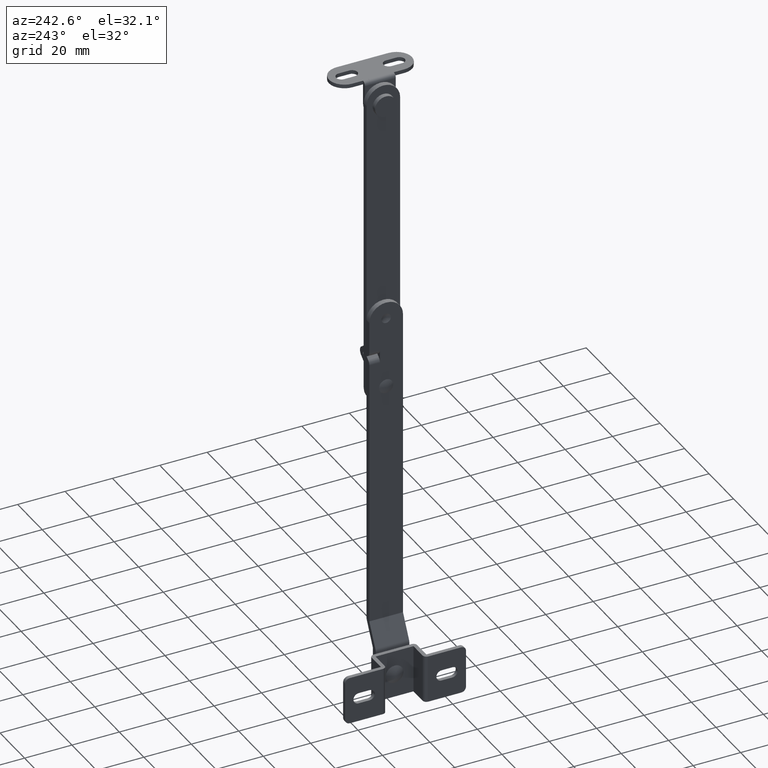
[diagram: clean part render]
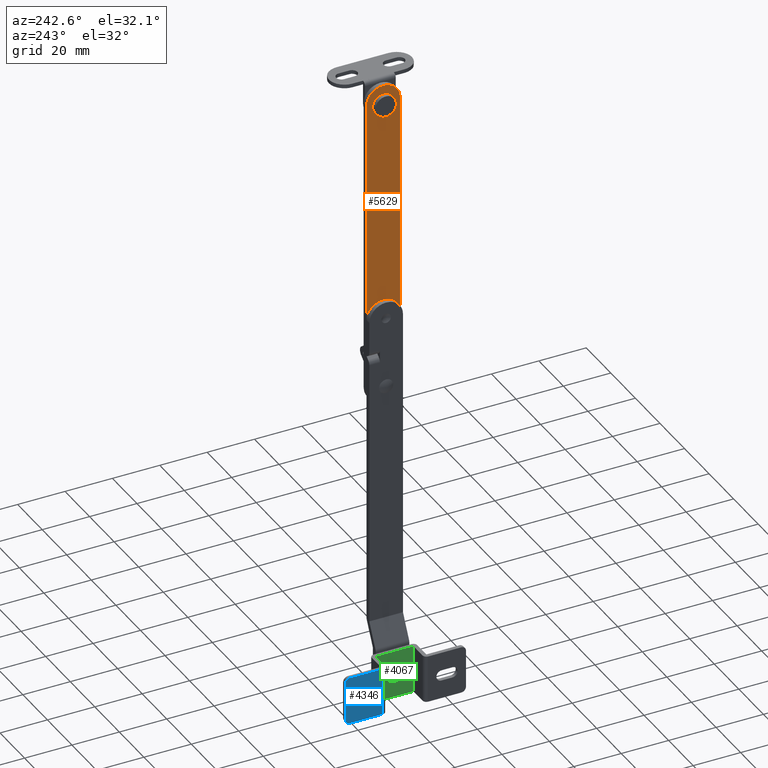
[diagram: same view with three faces highlighted in distinct colors, each labeled with its STEP entity id]
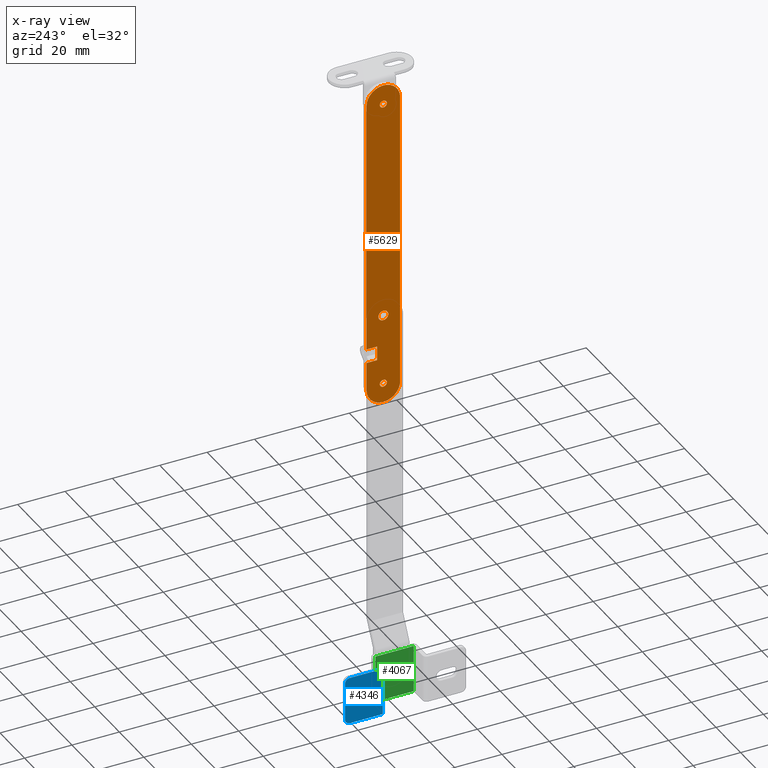
[diagram: x-ray of the same camera — body ghosted, the three highlighted faces saturated]
A machine part, auxiliary view with three faces highlighted in distinct colors.
The next image is the same camera in x-ray (body ghosted, the three faces saturated) — at least one of them is partly hidden behind the body in this view.
Their STEP definitions:

[orange] entity #5629 — the highlighted face is a freeform B-spline surface patch.
#4426=CARTESIAN_POINT('',(18.000005999999850,-1.603468129099456,31.356059513402570));
#4427=VERTEX_POINT('',#4426);
#4433=CARTESIAN_POINT('',(18.000005999999850,-2.352999E-011,32.099999999999987));
#4434=VERTEX_POINT('',#4433);
#4435=CARTESIAN_POINT('',(18.000005999999850,-1.603468129099456,31.356059513402570));
#4436=CARTESIAN_POINT('',(18.000005999999861,-1.431787277788725,31.559356315284770));
#4437=CARTESIAN_POINT('',(18.000005999999829,-0.949610983190649,31.947908262836329));
#4438=CARTESIAN_POINT('',(18.000005999999878,-0.342218562322408,32.100681878595367));
#4439=CARTESIAN_POINT('',(18.000005999999850,-2.352999E-011,32.099999999999987));
#4440=B_SPLINE_CURVE_WITH_KNOTS('',3,(#4435,#4436,#4437,#4438,#4439),.UNSPECIFIED.,.F.,.U.,(4,1,4),(0.000000194144374,0.798265835346080,1.824540082533289),.UNSPECIFIED.);
#4441=EDGE_CURVE('',#4427,#4434,#4440,.T.);
#4443=CARTESIAN_POINT('',(18.000005999999850,2.099999999964161,29.999992809857861));
#4444=VERTEX_POINT('',#4443);
#4445=CARTESIAN_POINT('',(18.000005999999850,-2.352999E-011,32.099999999999987));
#4446=CARTESIAN_POINT('',(18.000005999999861,0.292126342070977,32.100355978226403));
#4447=CARTESIAN_POINT('',(18.000005999999850,0.858775421879795,31.979832656606799));
#4448=CARTESIAN_POINT('',(18.000005999999871,1.531850435339592,31.505941719600241));
#4449=CARTESIAN_POINT('',(18.000005999999811,1.987048812344380,30.824471098689909));
#4450=CARTESIAN_POINT('',(18.000005999999829,2.100354998855099,30.292100760222539));
#4451=CARTESIAN_POINT('',(18.000005999999850,2.099999999964161,29.999992809857861));
#4452=B_SPLINE_CURVE_WITH_KNOTS('',3,(#4445,#4446,#4447,#4448,#4449,#4450,#4451),.UNSPECIFIED.,.F.,.U.,(4,1,1,1,4),(0.000000659755377,0.876234570972186,1.700823224128370,2.422525202656099,3.298759115814550),.UNSPECIFIED.);
#4453=EDGE_CURVE('',#4434,#4444,#4452,.T.);
#4455=CARTESIAN_POINT('',(18.000005999999850,-2.352999E-011,27.899999999999999));
#4456=VERTEX_POINT('',#4455);
#4457=CARTESIAN_POINT('',(18.000005999999850,2.099999999964161,29.999992809857861));
#4458=CARTESIAN_POINT('',(18.000005999999871,2.100238035541367,29.742241320457239));
#4459=CARTESIAN_POINT('',(18.000005999999850,2.023075239631802,29.330094341150691));
#4460=CARTESIAN_POINT('',(18.000005999999850,1.736477130254248,28.777734418621030));
#4461=CARTESIAN_POINT('',(18.000005999999889,1.316738621792202,28.314268439314429));
#4462=CARTESIAN_POINT('',(18.000005999999779,0.704398883076758,27.977370728485560));
#4463=CARTESIAN_POINT('',(18.000005999999939,0.223347635958732,27.899908092836100));
#4464=CARTESIAN_POINT('',(18.000005999999850,-2.352999E-011,27.899999999999999));
#4465=B_SPLINE_CURVE_WITH_KNOTS('',3,(#4457,#4458,#4459,#4460,#4461,#4462,#4463,#4464),.UNSPECIFIED.,.F.,.U.,(4,1,1,1,1,4),(0.000000669543942,0.773144084286569,1.237077105179785,1.855504484025609,2.628699516542083,3.298751010646301),.UNSPECIFIED.);
#4466=EDGE_CURVE('',#4444,#4456,#4465,.T.);
#4468=CARTESIAN_POINT('',(18.000005999999850,-1.445543778370220,28.476715507340209));
#4469=VERTEX_POINT('',#4468);
#4470=CARTESIAN_POINT('',(18.000005999999850,-2.352999E-011,27.899999999999999));
#4471=CARTESIAN_POINT('',(18.000005999999789,-0.299047053531074,27.899556558826720));
#4472=CARTESIAN_POINT('',(18.000005999999971,-0.830007286490355,28.015603014232319));
#4473=CARTESIAN_POINT('',(18.000005999999800,-1.276995469300518,28.316543197736639));
#4474=CARTESIAN_POINT('',(18.000005999999850,-1.445543778370220,28.476715507340209));
#4475=B_SPLINE_CURVE_WITH_KNOTS('',3,(#4470,#4471,#4472,#4473,#4474),.UNSPECIFIED.,.F.,.U.,(4,1,4),(0.000168353064012,0.896973022731005,1.594479592319328),.UNSPECIFIED.);
#4476=EDGE_CURVE('',#4456,#4469,#4475,.T.);
#4555=CARTESIAN_POINT('',(18.000005999999850,-2.100000000011220,30.000007190142139));
#4556=VERTEX_POINT('',#4555);
#4557=CARTESIAN_POINT('',(18.000005999999850,-1.445543778370220,28.476715507340209));
#4558=CARTESIAN_POINT('',(18.000005999999878,-1.625955366378637,28.647702426100121));
#4559=CARTESIAN_POINT('',(18.000005999999729,-1.967620005637131,29.112812806298159));
#4560=CARTESIAN_POINT('',(18.000005999999949,-2.100562185364313,29.680343794702839));
#4561=CARTESIAN_POINT('',(18.000005999999850,-2.100000000011220,30.000007190142139));
#4562=B_SPLINE_CURVE_WITH_KNOTS('',3,(#4557,#4558,#4559,#4560,#4561),.UNSPECIFIED.,.F.,.U.,(4,1,4),(0.000000174354884,0.745677110058247,1.704365584033918),.UNSPECIFIED.);
#4563=EDGE_CURVE('',#4469,#4556,#4562,.T.);
#4565=CARTESIAN_POINT('',(18.000005999999850,-2.100000000011220,30.000007190142139));
#4566=CARTESIAN_POINT('',(18.000005999999861,-2.100115683864082,30.214996747990359));
#4567=CARTESIAN_POINT('',(18.000005999999850,-2.023841711022000,30.706341149909580));
#4568=CARTESIAN_POINT('',(18.000005999999850,-1.782245849895740,31.145165964261508));
#4569=CARTESIAN_POINT('',(18.000005999999850,-1.603468129099456,31.356059513402570));
#4570=B_SPLINE_CURVE_WITH_KNOTS('',3,(#4565,#4566,#4567,#4568,#4569),.UNSPECIFIED.,.F.,.U.,(4,1,4),(0.000000101963709,0.645007003185533,1.474300568967522),.UNSPECIFIED.);
#4571=EDGE_CURVE('',#4556,#4427,#4570,.T.);
#4645=CARTESIAN_POINT('',(18.000005999999850,1.123433099608030,122.506069421516900));
#4646=VERTEX_POINT('',#4645);
#4652=CARTESIAN_POINT('',(18.000005999999850,-1.858299E-013,122.0));
#4653=VERTEX_POINT('',#4652);
#4654=CARTESIAN_POINT('',(18.000005999999850,1.123433099608030,122.506069421516900));
#4655=CARTESIAN_POINT('',(18.000005999999871,1.000861429758136,122.367260338900390));
#4656=CARTESIAN_POINT('',(18.000005999999829,0.660854754447822,122.103093797306700));
#4657=CARTESIAN_POINT('',(18.000005999999850,0.238190186077856,121.999516041264400));
#4658=CARTESIAN_POINT('',(18.000005999999850,-1.858299E-013,122.0));
#4659=B_SPLINE_CURVE_WITH_KNOTS('',3,(#4654,#4655,#4656,#4657,#4658),.UNSPECIFIED.,.F.,.U.,(4,1,4),(0.000000187069328,0.555570892297762,1.269874225939575),.UNSPECIFIED.);
#4660=EDGE_CURVE('',#4646,#4653,#4659,.T.);
#4662=CARTESIAN_POINT('',(18.000005999999850,-1.500000000000183,123.499999898093290));
#4663=VERTEX_POINT('',#4662);
#4664=CARTESIAN_POINT('',(18.000005999999850,-1.858299E-013,122.0));
#4665=CARTESIAN_POINT('',(18.000005999999871,-0.196372768414404,121.999801190488100));
#4666=CARTESIAN_POINT('',(18.000005999999839,-0.588932717686156,122.078215306268900));
#4667=CARTESIAN_POINT('',(18.000005999999861,-1.088373114510708,122.411598147367500));
#4668=CARTESIAN_POINT('',(18.000005999999839,-1.421794249724092,122.911109232010300));
#4669=CARTESIAN_POINT('',(18.000005999999878,-1.500200246819131,123.303610862655400));
#4670=CARTESIAN_POINT('',(18.000005999999850,-1.500000000000183,123.499999898093290));
#4671=B_SPLINE_CURVE_WITH_KNOTS('',3,(#4664,#4665,#4666,#4667,#4668,#4669,#4670),.UNSPECIFIED.,.F.,.U.,(4,1,1,1,4),(0.000000459810171,0.589113369120402,1.178215900985404,1.767323334941975,2.356430767539216),.UNSPECIFIED.);
#4672=EDGE_CURVE('',#4653,#4663,#4671,.T.);
#4674=CARTESIAN_POINT('',(18.000005999999850,-1.858299E-013,125.0));
#4675=VERTEX_POINT('',#4674);
#4676=CARTESIAN_POINT('',(18.000005999999850,-1.500000000000183,123.499999898093290));
#4677=CARTESIAN_POINT('',(18.000005999999871,-1.500220001690563,123.696388157995500));
#4678=CARTESIAN_POINT('',(18.000005999999839,-1.441284626469429,123.990730988000290));
#4679=CARTESIAN_POINT('',(18.000005999999861,-1.208846329325897,124.425798509353100));
#4680=CARTESIAN_POINT('',(18.000005999999871,-0.784375401925025,124.850603324238900));
#4681=CARTESIAN_POINT('',(18.000005999999861,-0.294792637290701,125.001064521656600));
#4682=CARTESIAN_POINT('',(18.000005999999850,-1.858299E-013,125.0));
#4683=B_SPLINE_CURVE_WITH_KNOTS('',3,(#4676,#4677,#4678,#4679,#4680,#4681,#4682),.UNSPECIFIED.,.F.,.U.,(4,1,1,1,4),(0.000000459267545,0.589113397398040,0.883685197252487,1.472733067264570,2.356430882423105),.UNSPECIFIED.);
#4684=EDGE_CURVE('',#4663,#4675,#4683,.T.);
#4686=CARTESIAN_POINT('',(18.000005999999850,0.993930611521812,124.623433137903400));
#4687=VERTEX_POINT('',#4686);
#4688=CARTESIAN_POINT('',(18.000005999999850,-1.858299E-013,125.0));
#4689=CARTESIAN_POINT('',(18.000005999999850,0.203752625855064,125.000259270999390));
#4690=CARTESIAN_POINT('',(18.000005999999850,0.565669443780192,124.924984391154790));
#4691=CARTESIAN_POINT('',(18.000005999999861,0.875307719353472,124.728486740933500));
#4692=CARTESIAN_POINT('',(18.000005999999850,0.993930611521812,124.623433137903400));
#4693=B_SPLINE_CURVE_WITH_KNOTS('',3,(#4688,#4689,#4690,#4691,#4692),.UNSPECIFIED.,.F.,.U.,(4,1,4),(0.000000170370302,0.611174562547099,1.086560857407124),.UNSPECIFIED.);
#4694=EDGE_CURVE('',#4675,#4687,#4693,.T.);
#4729=CARTESIAN_POINT('',(18.000005999999850,1.499999999999811,123.500000101906710));
#4730=VERTEX_POINT('',#4729);
#4731=CARTESIAN_POINT('',(18.000005999999850,0.993930611521812,124.623433137903400));
#4732=CARTESIAN_POINT('',(18.000005999999861,1.132735154373484,124.500839108503800));
#4733=CARTESIAN_POINT('',(18.000005999999850,1.396918125383275,124.160885723152010));
#4734=CARTESIAN_POINT('',(18.000005999999861,1.500479277435720,123.738173903597700));
#4735=CARTESIAN_POINT('',(18.000005999999850,1.499999999999811,123.500000101906710));
#4736=B_SPLINE_CURVE_WITH_KNOTS('',3,(#4731,#4732,#4733,#4734,#4735),.UNSPECIFIED.,.F.,.U.,(4,1,4),(0.000000187058504,0.555570857340634,1.269874146035380),.UNSPECIFIED.);
#4737=EDGE_CURVE('',#4687,#4730,#4736,.T.);
#4739=CARTESIAN_POINT('',(18.000005999999850,1.499999999999811,123.500000101906710));
#4740=CARTESIAN_POINT('',(18.000005999999850,1.500570822878238,123.250873987628200));
#4741=CARTESIAN_POINT('',(18.000005999999850,1.407720171721887,122.889309426886400));
#4742=CARTESIAN_POINT('',(18.000005999999850,1.198413557516131,122.590831474433800));
#4743=CARTESIAN_POINT('',(18.000005999999850,1.123433099608030,122.506069421516900));
#4744=B_SPLINE_CURVE_WITH_KNOTS('',3,(#4739,#4740,#4741,#4742,#4743),.UNSPECIFIED.,.F.,.U.,(4,1,4),(0.000000170364071,0.746998956581800,1.086560941653473),.UNSPECIFIED.);
#4745=EDGE_CURVE('',#4730,#4646,#4744,.T.);
#4827=CARTESIAN_POINT('',(18.000005999999850,1.123433099608215,-0.993930578483145));
#4828=VERTEX_POINT('',#4827);
#4834=CARTESIAN_POINT('',(18.000005999999850,0.0,-1.500000000000000));
#4835=VERTEX_POINT('',#4834);
#4836=CARTESIAN_POINT('',(18.000005999999850,1.123433099608215,-0.993930578483145));
#4837=CARTESIAN_POINT('',(18.000005999999878,0.965982141034104,-1.172649276268074));
#4838=CARTESIAN_POINT('',(18.000005999999800,0.608321561213829,-1.420606800103987));
#4839=CARTESIAN_POINT('',(18.000005999999889,0.185186079652431,-1.500151396650556));
#4840=CARTESIAN_POINT('',(18.000005999999850,0.0,-1.500000000000000));
#4841=B_SPLINE_CURVE_WITH_KNOTS('',3,(#4836,#4837,#4838,#4839,#4840),.UNSPECIFIED.,.F.,.U.,(4,1,4),(0.000000187069410,0.714303520703768,1.269874225939574),.UNSPECIFIED.);
#4842=EDGE_CURVE('',#4828,#4835,#4841,.T.);
#4844=CARTESIAN_POINT('',(18.000005999999850,-1.499999999999997,-0.000000101906711));
#4845=VERTEX_POINT('',#4844);
#4846=CARTESIAN_POINT('',(18.000005999999850,0.0,-1.500000000000000));
#4847=CARTESIAN_POINT('',(18.000005999999861,-0.196376588844617,-1.500198869482367));
#4848=CARTESIAN_POINT('',(18.000005999999861,-0.588929825499899,-1.421784717390424));
#4849=CARTESIAN_POINT('',(18.000005999999850,-1.088374743961445,-1.088400118192788));
#4850=CARTESIAN_POINT('',(18.000005999999850,-1.421792717255046,-0.588895725307404));
#4851=CARTESIAN_POINT('',(18.000005999999861,-1.500198714386067,-0.196383197151813));
#4852=CARTESIAN_POINT('',(18.000005999999850,-1.499999999999997,-0.000000101906711));
#4853=B_SPLINE_CURVE_WITH_KNOTS('',3,(#4846,#4847,#4848,#4849,#4850,#4851,#4852),.UNSPECIFIED.,.F.,.U.,(4,1,1,1,4),(0.000000459807827,0.589113369118813,1.178215900984567,1.767323334941643,2.356430767539226),.UNSPECIFIED.);
#4854=EDGE_CURVE('',#4835,#4845,#4853,.T.);
#4856=CARTESIAN_POINT('',(18.000005999999850,0.0,1.500000000000000));
#4857=VERTEX_POINT('',#4856);
#4858=CARTESIAN_POINT('',(18.000005999999850,-1.499999999999997,-0.000000101906711));
#4859=CARTESIAN_POINT('',(18.000005999999829,-1.500194560873185,0.196373369698294));
#4860=CARTESIAN_POINT('',(18.000005999999900,-1.421812132280615,0.588949903473241));
#4861=CARTESIAN_POINT('',(18.000005999999839,-1.116107563419387,1.046632364007461));
#4862=CARTESIAN_POINT('',(18.000005999999861,-0.637646495644659,1.401332669876977));
#4863=CARTESIAN_POINT('',(18.000005999999821,-0.245576123842860,1.500506627975043));
#4864=CARTESIAN_POINT('',(18.000005999999850,0.0,1.500000000000000));
#4865=B_SPLINE_CURVE_WITH_KNOTS('',3,(#4858,#4859,#4860,#4861,#4862,#4863,#4864),.UNSPECIFIED.,.F.,.U.,(4,1,1,1,4),(0.000000459268587,0.589113397398972,1.178215958646175,1.620021368977728,2.356430882423041),.UNSPECIFIED.);
#4866=EDGE_CURVE('',#4845,#4857,#4865,.T.);
#4868=CARTESIAN_POINT('',(18.000005999999850,0.993930611521998,1.123433137903350));
#4869=VERTEX_POINT('',#4868);
#4870=CARTESIAN_POINT('',(18.000005999999850,0.0,1.500000000000000));
#4871=CARTESIAN_POINT('',(18.000005999999889,0.203756457105891,1.500255610400235));
#4872=CARTESIAN_POINT('',(18.000005999999800,0.565668884667782,1.424986754394676));
#4873=CARTESIAN_POINT('',(18.000005999999889,0.875305887595269,1.228487564029506));
#4874=CARTESIAN_POINT('',(18.000005999999850,0.993930611521998,1.123433137903350));
#4875=B_SPLINE_CURVE_WITH_KNOTS('',3,(#4870,#4871,#4872,#4873,#4874),.UNSPECIFIED.,.F.,.U.,(4,1,4),(0.000000170370403,0.611174562547094,1.086560857407114),.UNSPECIFIED.);
#4876=EDGE_CURVE('',#4857,#4869,#4875,.T.);
#4911=CARTESIAN_POINT('',(18.000005999999850,1.499999999999996,0.000000101906706));
#4912=VERTEX_POINT('',#4911);
#4913=CARTESIAN_POINT('',(18.000005999999850,0.993930611521998,1.123433137903350));
#4914=CARTESIAN_POINT('',(18.000005999999839,1.132744931637755,1.000837880349250));
#4915=CARTESIAN_POINT('',(18.000005999999871,1.396901805776186,0.660892966114682));
#4916=CARTESIAN_POINT('',(18.000005999999850,1.500487907899777,0.238170312735903));
#4917=CARTESIAN_POINT('',(18.000005999999850,1.499999999999996,0.000000101906706));
#4918=B_SPLINE_CURVE_WITH_KNOTS('',3,(#4913,#4914,#4915,#4916,#4917),.UNSPECIFIED.,.F.,.U.,(4,1,4),(0.000000187058511,0.555570857340686,1.269874146035370),.UNSPECIFIED.);
#4919=EDGE_CURVE('',#4869,#4912,#4918,.T.);
#4921=CARTESIAN_POINT('',(18.000005999999850,1.499999999999996,0.000000101906706));
#4922=CARTESIAN_POINT('',(18.000005999999871,1.500254763284294,-0.203754236695717));
#4923=CARTESIAN_POINT('',(18.000005999999850,1.424989594754326,-0.565663677449044));
#4924=CARTESIAN_POINT('',(18.000005999999850,1.228485384947194,-0.875310080305481));
#4925=CARTESIAN_POINT('',(18.000005999999850,1.123433099608215,-0.993930578483145));
#4926=B_SPLINE_CURVE_WITH_KNOTS('',3,(#4921,#4922,#4923,#4924,#4925),.UNSPECIFIED.,.F.,.U.,(4,1,4),(0.000000170363715,0.611174609931099,1.086560941653472),.UNSPECIFIED.);
#4927=EDGE_CURVE('',#4912,#4828,#4926,.T.);
#5033=CARTESIAN_POINT('',(18.000005999999900,7.099999999999770,11.000013213438301));
#5034=VERTEX_POINT('',#5033);
#5040=CARTESIAN_POINT('',(18.000005999999900,2.599999999999910,11.000013213438301));
#5041=VERTEX_POINT('',#5040);
#5042=CARTESIAN_POINT('',(18.000005999999900,2.599999999999910,11.000013213438301));
#5043=CARTESIAN_POINT('',(18.000005999999900,7.099999999999770,11.000013213438301));
#5044=QUASI_UNIFORM_CURVE('',1,(#5042,#5043),.UNSPECIFIED.,.F.,.U.);
#5045=EDGE_CURVE('',#5041,#5034,#5044,.T.);
#5219=CARTESIAN_POINT('',(18.000005999999900,7.099999999999779,16.999986786501800));
#5220=VERTEX_POINT('',#5219);
#5227=CARTESIAN_POINT('',(18.000006000000049,2.599999999999910,16.999986786501651));
#5228=VERTEX_POINT('',#5227);
#5234=CARTESIAN_POINT('',(18.000006000000049,2.599999999999910,16.999986786501651));
#5235=CARTESIAN_POINT('',(18.000005999999900,7.099999999999779,16.999986786501800));
#5236=QUASI_UNIFORM_CURVE('',1,(#5234,#5235),.UNSPECIFIED.,.F.,.U.);
#5237=EDGE_CURVE('',#5228,#5220,#5236,.T.);
#5342=CARTESIAN_POINT('',(18.000005999999850,-7.100000000000140,-1.149999999999852));
#5343=VERTEX_POINT('',#5342);
#5349=CARTESIAN_POINT('',(18.000005999999850,0.000000035110811,-8.250000000000036));
#5350=VERTEX_POINT('',#5349);
#5351=CARTESIAN_POINT('',(18.000005999999850,0.000000035110811,-8.250000000000036));
#5352=CARTESIAN_POINT('',(18.000005999999861,-0.871438991060713,-8.250755418874434));
#5353=CARTESIAN_POINT('',(18.000005999999861,-2.206789493795415,-8.000822782619848));
#5354=CARTESIAN_POINT('',(18.000005999999829,-3.979466457134550,-7.108471006097473));
#5355=CARTESIAN_POINT('',(18.000005999999932,-5.190453835093848,-6.089573027629918));
#5356=CARTESIAN_POINT('',(18.000005999999789,-6.129073843397251,-4.823645805110334));
#5357=CARTESIAN_POINT('',(18.000005999999999,-6.878042406229396,-3.240814922523161));
#5358=CARTESIAN_POINT('',(18.000005999999750,-7.100476931658760,-1.963279520971338));
#5359=CARTESIAN_POINT('',(18.000005999999850,-7.100000000000140,-1.149999999999852));
#5360=B_SPLINE_CURVE_WITH_KNOTS('',3,(#5351,#5352,#5353,#5354,#5355,#5356,#5357,#5358,#5359),.UNSPECIFIED.,.F.,.U.,(4,1,1,1,1,1,4),(0.000000104890937,2.613962011138447,4.008117856519817,5.924987675795583,7.319079476249270,8.713244113137289,11.152933804565841),.UNSPECIFIED.);
#5361=EDGE_CURVE('',#5350,#5343,#5360,.T.);
#5363=CARTESIAN_POINT('',(18.000005999999850,7.100000000000111,-1.150000000000020));
#5364=VERTEX_POINT('',#5363);
#5365=CARTESIAN_POINT('',(18.000005999999850,7.100000000000111,-1.150000000000020));
#5366=CARTESIAN_POINT('',(18.000005999999850,7.100185234584663,-1.788963606506736));
#5367=CARTESIAN_POINT('',(18.000005999999861,6.934242939591665,-3.008688810967088));
#5368=CARTESIAN_POINT('',(18.000005999999878,6.284737937306348,-4.576737575272019));
#5369=CARTESIAN_POINT('',(18.000005999999861,5.377248853894643,-5.865172946851040));
#5370=CARTESIAN_POINT('',(18.000005999999850,4.392454001542413,-6.779972756972793));
#5371=CARTESIAN_POINT('',(18.000005999999878,3.260636742545820,-7.496642596951699));
#5372=CARTESIAN_POINT('',(18.000005999999750,1.858633970609884,-8.077525429268833));
#5373=CARTESIAN_POINT('',(18.000005999999921,0.697062094527319,-8.250274000882454));
#5374=CARTESIAN_POINT('',(18.000005999999850,0.000000035110811,-8.250000000000036));
#5375=B_SPLINE_CURVE_WITH_KNOTS('',3,(#5365,#5366,#5367,#5368,#5369,#5370,#5371,#5372,#5373,#5374),.UNSPECIFIED.,.F.,.U.,(4,1,1,1,1,1,1,4),(0.000000104937181,1.916878179225030,3.659585621935372,5.053684775021097,6.622025389704349,7.667615584938650,9.061785110250407,11.152933764986710),.UNSPECIFIED.);
#5376=EDGE_CURVE('',#5364,#5350,#5375,.T.);
#5404=CARTESIAN_POINT('',(18.000005999999850,0.000004087301126,131.749999999998810));
#5405=VERTEX_POINT('',#5404);
#5406=CARTESIAN_POINT('',(18.000005999999850,7.099999999999790,124.650000000000010));
#5407=VERTEX_POINT('',#5406);
#5408=CARTESIAN_POINT('',(18.000005999999850,0.000004087301126,131.749999999998810));
#5409=CARTESIAN_POINT('',(18.000005999999871,0.755172952054853,131.750434621472210));
#5410=CARTESIAN_POINT('',(18.000005999999850,2.090914049805619,131.534777452627310));
#5411=CARTESIAN_POINT('',(18.000005999999789,3.889772932368003,130.684025198897390));
#5412=CARTESIAN_POINT('',(18.000006000000031,5.190459940499425,129.589564553810700));
#5413=CARTESIAN_POINT('',(18.000005999999608,6.129117254720879,128.323653028602710));
#5414=CARTESIAN_POINT('',(18.000006000000191,6.877880405163165,126.740786008684790));
#5415=CARTESIAN_POINT('',(18.000005999999718,7.100638908424767,125.463306554989900));
#5416=CARTESIAN_POINT('',(18.000005999999850,7.099999999999790,124.650000000000010));
#5417=B_SPLINE_CURVE_WITH_KNOTS('',3,(#5408,#5409,#5410,#5411,#5412,#5413,#5414,#5415,#5416),.UNSPECIFIED.,.F.,.U.,(4,1,1,1,1,1,4),(0.000000107717348,2.265418206502124,4.008117024372958,5.924986447082603,7.319077952356786,8.713242297294610,11.152931481047521),.UNSPECIFIED.);
#5418=EDGE_CURVE('',#5405,#5407,#5417,.T.);
#5420=CARTESIAN_POINT('',(18.000005999999850,-7.100000000000200,124.650000000000010));
#5421=VERTEX_POINT('',#5420);
#5422=CARTESIAN_POINT('',(18.000005999999850,-7.100000000000200,124.650000000000010));
#5423=CARTESIAN_POINT('',(18.000005999999839,-7.100819009309263,125.521452690954600));
#5424=CARTESIAN_POINT('',(18.000005999999861,-6.872548795145068,126.740679283329000));
#5425=CARTESIAN_POINT('',(18.000005999999850,-6.150116357886708,128.267507230538000));
#5426=CARTESIAN_POINT('',(18.000005999999861,-5.243099221898513,129.556376611255100));
#5427=CARTESIAN_POINT('',(18.000005999999861,-3.937633479038519,130.654529731972900));
#5428=CARTESIAN_POINT('',(18.000005999999861,-2.090763633302728,131.527861044188710));
#5429=CARTESIAN_POINT('',(18.000005999999871,-0.813300562420432,131.750633794828790));
#5430=CARTESIAN_POINT('',(18.000005999999850,0.000004087301126,131.749999999998810));
#5431=B_SPLINE_CURVE_WITH_KNOTS('',3,(#5422,#5423,#5424,#5425,#5426,#5427,#5428,#5429,#5430),.UNSPECIFIED.,.F.,.U.,(4,1,1,1,1,1,4),(0.000000102104027,2.613962544132612,3.659586381759002,5.053685823154170,7.319080974182000,8.713245898047379,11.152936088503671),.UNSPECIFIED.);
#5432=EDGE_CURVE('',#5421,#5405,#5431,.T.);
#5489=CARTESIAN_POINT('',(18.000005999999850,-7.100000000000140,-1.149999999999852));
#5490=CARTESIAN_POINT('',(18.000005999999850,-7.100000000000200,124.650000000000010));
#5491=QUASI_UNIFORM_CURVE('',1,(#5489,#5490),.UNSPECIFIED.,.F.,.U.);
#5492=EDGE_CURVE('',#5343,#5421,#5491,.T.);
#5502=CARTESIAN_POINT('',(18.000005999999850,7.099999999999790,124.650000000000010));
#5503=CARTESIAN_POINT('',(18.000005999999900,7.099999999999779,16.999986786501800));
#5504=QUASI_UNIFORM_CURVE('',1,(#5502,#5503),.UNSPECIFIED.,.F.,.U.);
#5505=EDGE_CURVE('',#5407,#5220,#5504,.T.);
#5522=CARTESIAN_POINT('',(18.000005999999900,7.099999999999770,11.000013213438301));
#5523=CARTESIAN_POINT('',(18.000005999999850,7.100000000000111,-1.150000000000020));
#5524=QUASI_UNIFORM_CURVE('',1,(#5522,#5523),.UNSPECIFIED.,.F.,.U.);
#5525=EDGE_CURVE('',#5034,#5364,#5524,.T.);
#5584=CARTESIAN_POINT('',(18.000005999999900,7.809289972477773,-15.242999728652840));
#5585=CARTESIAN_POINT('',(18.000005999999910,-7.809290353351539,-15.242999728652840));
#5586=CARTESIAN_POINT('',(18.000005999999910,7.809289972477773,138.743003483744190));
#5587=CARTESIAN_POINT('',(18.000005999999910,-7.809290353351539,138.743003483744190));
#5588=B_SPLINE_SURFACE_WITH_KNOTS('',1,1,((#5584,#5586),(#5585,#5587)),.UNSPECIFIED.,.F.,.F.,.U.,(2,2),(2,2),(0.0,15.618580325829310),(0.0,153.986003212397010),.UNSPECIFIED.);
#5589=ORIENTED_EDGE('',*,*,#5525,.T.);
#5590=ORIENTED_EDGE('',*,*,#5376,.T.);
#5591=ORIENTED_EDGE('',*,*,#5361,.T.);
#5592=ORIENTED_EDGE('',*,*,#5492,.T.);
#5593=ORIENTED_EDGE('',*,*,#5432,.T.);
#5594=ORIENTED_EDGE('',*,*,#5418,.T.);
#5595=ORIENTED_EDGE('',*,*,#5505,.T.);
#5596=ORIENTED_EDGE('',*,*,#5237,.F.);
#5597=CARTESIAN_POINT('',(18.000006000000049,2.599999999999910,16.999986786501651));
#5598=CARTESIAN_POINT('',(18.000005999999900,2.599999999999910,11.000013213438301));
#5599=QUASI_UNIFORM_CURVE('',1,(#5597,#5598),.UNSPECIFIED.,.F.,.U.);
#5600=EDGE_CURVE('',#5228,#5041,#5599,.T.);
#5601=ORIENTED_EDGE('',*,*,#5600,.T.);
#5602=ORIENTED_EDGE('',*,*,#5045,.T.);
#5603=EDGE_LOOP('',(#5589,#5590,#5591,#5592,#5593,#5594,#5595,#5596,#5601,#5602));
#5604=FACE_OUTER_BOUND('',#5603,.T.);
#5605=ORIENTED_EDGE('',*,*,#4672,.F.);
#5606=ORIENTED_EDGE('',*,*,#4660,.F.);
#5607=ORIENTED_EDGE('',*,*,#4745,.F.);
#5608=ORIENTED_EDGE('',*,*,#4737,.F.);
#5609=ORIENTED_EDGE('',*,*,#4694,.F.);
#5610=ORIENTED_EDGE('',*,*,#4684,.F.);
#5611=EDGE_LOOP('',(#5605,#5606,#5607,#5608,#5609,#5610));
#5612=FACE_BOUND('',#5611,.T.);
#5613=ORIENTED_EDGE('',*,*,#4854,.F.);
#5614=ORIENTED_EDGE('',*,*,#4842,.F.);
#5615=ORIENTED_EDGE('',*,*,#4927,.F.);
#5616=ORIENTED_EDGE('',*,*,#4919,.F.);
#5617=ORIENTED_EDGE('',*,*,#4876,.F.);
#5618=ORIENTED_EDGE('',*,*,#4866,.F.);
#5619=EDGE_LOOP('',(#5613,#5614,#5615,#5616,#5617,#5618));
#5620=FACE_BOUND('',#5619,.T.);
#5621=ORIENTED_EDGE('',*,*,#4453,.F.);
#5622=ORIENTED_EDGE('',*,*,#4441,.F.);
#5623=ORIENTED_EDGE('',*,*,#4571,.F.);
#5624=ORIENTED_EDGE('',*,*,#4563,.F.);
#5625=ORIENTED_EDGE('',*,*,#4476,.F.);
#5626=ORIENTED_EDGE('',*,*,#4466,.F.);
#5627=EDGE_LOOP('',(#5621,#5622,#5623,#5624,#5625,#5626));
#5628=FACE_BOUND('',#5627,.T.);
#5629=ADVANCED_FACE('',(#5604,#5612,#5620,#5628),#5588,.T.);

[blue] entity #4346 — the highlighted face is a freeform B-spline surface patch.
#3150=CARTESIAN_POINT('',(-0.099999999999987,15.250000000000000,-125.750000000000000));
#3151=VERTEX_POINT('',#3150);
#3157=CARTESIAN_POINT('',(-0.099999999999987,13.000000000011591,-123.499992776606210));
#3158=VERTEX_POINT('',#3157);
#3159=CARTESIAN_POINT('',(-0.099999999999987,15.250000000000000,-125.750000000000000));
#3160=CARTESIAN_POINT('',(-0.099999999999987,14.973873164314970,-125.750197732628390));
#3161=CARTESIAN_POINT('',(-0.099999999999987,14.403308449734780,-125.643711834630000));
#3162=CARTESIAN_POINT('',(-0.099999999999987,13.642048357574801,-125.162129428512200));
#3163=CARTESIAN_POINT('',(-0.099999999999987,13.120926001774590,-124.401770143360810));
#3164=CARTESIAN_POINT('',(-0.099999999999987,12.999698638576970,-123.794558171933100));
#3165=CARTESIAN_POINT('',(-0.099999999999987,13.000000000011591,-123.499992776606210));
#3166=B_SPLINE_CURVE_WITH_KNOTS('',3,(#3159,#3160,#3161,#3162,#3163,#3164,#3165),.UNSPECIFIED.,.F.,.U.,(4,1,1,1,4),(0.000000625091867,0.828368929352532,1.712059513566611,2.650788564761916,3.534384496202183),.UNSPECIFIED.);
#3167=EDGE_CURVE('',#3151,#3158,#3166,.T.);
#3169=CARTESIAN_POINT('',(-0.099999999999987,15.250000000000000,-121.250000000000000));
#3170=VERTEX_POINT('',#3169);
#3171=CARTESIAN_POINT('',(-0.099999999999987,13.000000000011591,-123.499992776606210));
#3172=CARTESIAN_POINT('',(-0.099999999999987,12.999808003790619,-123.223870720372300));
#3173=CARTESIAN_POINT('',(-0.099999999999987,13.106231067822170,-122.653242507009490));
#3174=CARTESIAN_POINT('',(-0.099999999999987,13.517785203414860,-122.003305258728500));
#3175=CARTESIAN_POINT('',(-0.099999999999988,14.019825518257800,-121.591669352556810));
#3176=CARTESIAN_POINT('',(-0.099999999999987,14.569024022554220,-121.323590959811100));
#3177=CARTESIAN_POINT('',(-0.099999999999988,14.992263019484740,-121.249804480769000));
#3178=CARTESIAN_POINT('',(-0.099999999999987,15.250000000000000,-121.250000000000000));
#3179=B_SPLINE_CURVE_WITH_KNOTS('',3,(#3171,#3172,#3173,#3174,#3175,#3176,#3177,#3178),.UNSPECIFIED.,.F.,.U.,(4,1,1,1,1,4),(0.000000634944110,0.828367029953638,1.712055584754863,2.264193330058098,2.761238464684050,3.534376353550585),.UNSPECIFIED.);
#3180=EDGE_CURVE('',#3158,#3170,#3179,.T.);
#3202=CARTESIAN_POINT('',(-0.099999999999987,19.750000000000000,-125.750000000000000));
#3203=VERTEX_POINT('',#3202);
#3209=CARTESIAN_POINT('',(-0.099999999999987,19.750000000000000,-125.750000000000000));
#3210=CARTESIAN_POINT('',(-0.099999999999987,15.250000000000000,-125.750000000000000));
#3211=QUASI_UNIFORM_CURVE('',1,(#3209,#3210),.UNSPECIFIED.,.F.,.U.);
#3212=EDGE_CURVE('',#3203,#3151,#3211,.T.);
#3262=CARTESIAN_POINT('',(-0.099999999999987,19.750000000000000,-121.250000000000000));
#3263=VERTEX_POINT('',#3262);
#3269=CARTESIAN_POINT('',(-0.099999999999987,21.999999999988411,-123.500007223393790));
#3270=VERTEX_POINT('',#3269);
#3271=CARTESIAN_POINT('',(-0.099999999999987,19.750000000000000,-121.250000000000000));
#3272=CARTESIAN_POINT('',(-0.099999999999987,19.952464094582670,-121.249990308468400));
#3273=CARTESIAN_POINT('',(-0.099999999999987,20.468031887663869,-121.319766471148600));
#3274=CARTESIAN_POINT('',(-0.099999999999987,21.119169818129890,-121.657486987949400));
#3275=CARTESIAN_POINT('',(-0.099999999999987,21.586722833035061,-122.161466016395810));
#3276=CARTESIAN_POINT('',(-0.099999999999987,21.908277341766990,-122.745508996010100));
#3277=CARTESIAN_POINT('',(-0.099999999999987,22.000323625178691,-123.205420586526700));
#3278=CARTESIAN_POINT('',(-0.099999999999987,21.999999999988411,-123.500007223393790));
#3279=B_SPLINE_CURVE_WITH_KNOTS('',3,(#3271,#3272,#3273,#3274,#3275,#3276,#3277,#3278),.UNSPECIFIED.,.F.,.U.,(4,1,1,1,1,4),(0.000000625082672,0.607465952569943,1.546359307077527,2.153760755114476,2.650788564761460,3.534384496202183),.UNSPECIFIED.);
#3280=EDGE_CURVE('',#3263,#3270,#3279,.T.);
#3282=CARTESIAN_POINT('',(-0.099999999999987,21.999999999988411,-123.500007223393790));
#3283=CARTESIAN_POINT('',(-0.099999999999987,22.000135979274681,-123.739320026648200));
#3284=CARTESIAN_POINT('',(-0.099999999999987,21.925869499585328,-124.199422152660400));
#3285=CARTESIAN_POINT('',(-0.099999999999987,21.599726155481960,-124.847774647336810));
#3286=CARTESIAN_POINT('',(-0.099999999999987,21.137346260433770,-125.310013362642910));
#3287=CARTESIAN_POINT('',(-0.099999999999987,20.504493721058090,-125.658262339935500));
#3288=CARTESIAN_POINT('',(-0.099999999999987,20.044587790768212,-125.750342993831890));
#3289=CARTESIAN_POINT('',(-0.099999999999987,19.750000000000000,-125.750000000000000));
#3290=B_SPLINE_CURVE_WITH_KNOTS('',3,(#3282,#3283,#3284,#3285,#3286,#3287,#3288,#3289),.UNSPECIFIED.,.F.,.U.,(4,1,1,1,1,4),(0.000000634932922,0.717911027480872,1.380623915136183,2.153755817367038,2.650782462055805,3.534376353550593),.UNSPECIFIED.);
#3291=EDGE_CURVE('',#3270,#3203,#3290,.T.);
#3308=CARTESIAN_POINT('',(-0.099999999999987,15.250000000000000,-121.250000000000000));
#3309=CARTESIAN_POINT('',(-0.099999999999987,19.750000000000000,-121.250000000000000));
#3310=QUASI_UNIFORM_CURVE('',1,(#3308,#3309),.UNSPECIFIED.,.F.,.U.);
#3311=EDGE_CURVE('',#3170,#3263,#3310,.T.);
#3653=CARTESIAN_POINT('',(-0.099999999999987,23.500000000000000,-133.500000000004600));
#3654=VERTEX_POINT('',#3653);
#3655=CARTESIAN_POINT('',(-0.099999999999987,25.500000000000000,-131.500000000004600));
#3656=VERTEX_POINT('',#3655);
#3657=CARTESIAN_POINT('',(-0.099999999999987,23.500000000000000,-133.500000000004600));
#3658=CARTESIAN_POINT('',(-0.099999999999987,23.810982876346401,-133.500529524480210));
#3659=CARTESIAN_POINT('',(-0.099999999999987,24.399526146614232,-133.359850001569610));
#3660=CARTESIAN_POINT('',(-0.099999999999987,25.013132083844280,-132.868866236943890));
#3661=CARTESIAN_POINT('',(-0.099999999999987,25.402765906499258,-132.236041633149400));
#3662=CARTESIAN_POINT('',(-0.099999999999987,25.500367001860159,-131.778226101905800));
#3663=CARTESIAN_POINT('',(-0.099999999999987,25.500000000000000,-131.500000000004600));
#3664=B_SPLINE_CURVE_WITH_KNOTS('',3,(#3657,#3658,#3659,#3660,#3661,#3662,#3663),.UNSPECIFIED.,.F.,.U.,(4,1,1,1,4),(0.000000633079072,0.932686972906372,1.767149350963513,2.307164052972636,3.141671488830979),.UNSPECIFIED.);
#3665=EDGE_CURVE('',#3654,#3656,#3664,.T.);
#3709=CARTESIAN_POINT('',(-0.099999999999987,25.500000000000000,-115.500000000004410));
#3710=VERTEX_POINT('',#3709);
#3711=CARTESIAN_POINT('',(-0.099999999999987,23.500000000000000,-113.500000000004600));
#3712=VERTEX_POINT('',#3711);
#3713=CARTESIAN_POINT('',(-0.099999999999987,25.500000000000000,-115.500000000004410));
#3714=CARTESIAN_POINT('',(-0.099999999999987,25.500526782592068,-115.189032895574400));
#3715=CARTESIAN_POINT('',(-0.099999999999987,25.371515475448881,-114.649568383003800));
#3716=CARTESIAN_POINT('',(-0.099999999999987,24.926259555044290,-114.049472557139400));
#3717=CARTESIAN_POINT('',(-0.099999999999987,24.317706530657649,-113.620778065532800));
#3718=CARTESIAN_POINT('',(-0.099999999999987,23.811004080286139,-113.499438576370810));
#3719=CARTESIAN_POINT('',(-0.099999999999987,23.500000000000000,-113.500000000004600));
#3720=B_SPLINE_CURVE_WITH_KNOTS('',3,(#3713,#3714,#3715,#3716,#3717,#3718,#3719),.UNSPECIFIED.,.F.,.U.,(4,1,1,1,4),(0.000000633083133,0.932686972909415,1.619829693507054,2.208981155449895,3.141671488830734),.UNSPECIFIED.);
#3721=EDGE_CURVE('',#3710,#3712,#3720,.T.);
#3814=CARTESIAN_POINT('',(-0.099999999999986,9.599999000000000,-113.500000000004600));
#3815=VERTEX_POINT('',#3814);
#3816=CARTESIAN_POINT('',(-0.099999999999986,9.599999000000000,-113.500000000004600));
#3817=CARTESIAN_POINT('',(-0.099999999999987,23.500000000000000,-113.500000000004600));
#3818=QUASI_UNIFORM_CURVE('',1,(#3816,#3817),.UNSPECIFIED.,.F.,.U.);
#3819=EDGE_CURVE('',#3815,#3712,#3818,.T.);
#3920=CARTESIAN_POINT('',(-0.099999999999986,9.599999000000000,-133.500000000004600));
#3921=VERTEX_POINT('',#3920);
#3932=CARTESIAN_POINT('',(-0.099999999999986,9.599999000000000,-133.500000000004600));
#3933=CARTESIAN_POINT('',(-0.099999999999987,23.500000000000000,-133.500000000004600));
#3934=QUASI_UNIFORM_CURVE('',1,(#3932,#3933),.UNSPECIFIED.,.F.,.U.);
#3935=EDGE_CURVE('',#3921,#3654,#3934,.T.);
#4014=CARTESIAN_POINT('',(-0.099999999999986,9.599999000000000,-133.500000000004600));
#4015=CARTESIAN_POINT('',(-0.099999999999986,9.599999000000000,-113.500000000004600));
#4016=QUASI_UNIFORM_CURVE('',1,(#4014,#4015),.UNSPECIFIED.,.F.,.U.);
#4017=EDGE_CURVE('',#3921,#3815,#4016,.T.);
#4314=CARTESIAN_POINT('',(-0.099999999999987,25.500000000000000,-131.500000000004600));
#4315=CARTESIAN_POINT('',(-0.099999999999987,25.500000000000000,-115.500000000004410));
#4316=QUASI_UNIFORM_CURVE('',1,(#4314,#4315),.UNSPECIFIED.,.F.,.U.);
#4317=EDGE_CURVE('',#3656,#3710,#4316,.T.);
#4325=CARTESIAN_POINT('',(-0.099999999999987,8.805794428640786,-134.498999961240710));
#4326=CARTESIAN_POINT('',(-0.099999999999987,8.805794428640786,-112.500999502326710));
#4327=CARTESIAN_POINT('',(-0.099999999999987,26.294205424301740,-134.498999961240710));
#4328=CARTESIAN_POINT('',(-0.099999999999987,26.294205424301740,-112.500999502326710));
#4329=B_SPLINE_SURFACE_WITH_KNOTS('',1,1,((#4325,#4327),(#4326,#4328)),.UNSPECIFIED.,.F.,.F.,.U.,(2,2),(2,2),(0.0,21.998000458914049),(0.0,17.488410995660949),.UNSPECIFIED.);
#4330=ORIENTED_EDGE('',*,*,#3935,.F.);
#4331=ORIENTED_EDGE('',*,*,#4017,.T.);
#4332=ORIENTED_EDGE('',*,*,#3819,.T.);
#4333=ORIENTED_EDGE('',*,*,#3721,.F.);
#4334=ORIENTED_EDGE('',*,*,#4317,.F.);
#4335=ORIENTED_EDGE('',*,*,#3665,.F.);
#4336=EDGE_LOOP('',(#4330,#4331,#4332,#4333,#4334,#4335));
#4337=FACE_OUTER_BOUND('',#4336,.T.);
#4338=ORIENTED_EDGE('',*,*,#3311,.F.);
#4339=ORIENTED_EDGE('',*,*,#3180,.F.);
#4340=ORIENTED_EDGE('',*,*,#3167,.F.);
#4341=ORIENTED_EDGE('',*,*,#3212,.F.);
#4342=ORIENTED_EDGE('',*,*,#3291,.F.);
#4343=ORIENTED_EDGE('',*,*,#3280,.F.);
#4344=EDGE_LOOP('',(#4338,#4339,#4340,#4341,#4342,#4343));
#4345=FACE_BOUND('',#4344,.T.);
#4346=ADVANCED_FACE('',(#4337,#4345),#4329,.T.);

[green] entity #4067 — the highlighted face is a freeform B-spline surface patch.
#2945=CARTESIAN_POINT('',(8.900000000000000,1.858299E-013,-122.0));
#2946=VERTEX_POINT('',#2945);
#2947=CARTESIAN_POINT('',(8.899999999998318,0.993930617896467,-122.376566867736200));
#2948=VERTEX_POINT('',#2947);
#2949=CARTESIAN_POINT('',(8.900000000000000,1.858299E-013,-122.0));
#2950=CARTESIAN_POINT('',(8.899999999999670,0.203752206388949,-121.999739926772900));
#2951=CARTESIAN_POINT('',(8.899999999999016,0.565670958807894,-122.075017674072300));
#2952=CARTESIAN_POINT('',(8.899999999998540,0.875305406064178,-122.271511294899900));
#2953=CARTESIAN_POINT('',(8.899999999998318,0.993930617896467,-122.376566867736200));
#2954=B_SPLINE_CURVE_WITH_KNOTS('',3,(#2949,#2950,#2951,#2952,#2953),.UNSPECIFIED.,.F.,.U.,(4,1,4),(0.000000170370231,0.611174567335351,1.086560865920183),.UNSPECIFIED.);
#2955=EDGE_CURVE('',#2946,#2948,#2954,.T.);
#3008=CARTESIAN_POINT('',(8.900000000003464,1.123433093968931,-124.493930584857400));
#3009=VERTEX_POINT('',#3008);
#3015=CARTESIAN_POINT('',(8.900000000000000,1.858299E-013,-125.0));
#3016=VERTEX_POINT('',#3015);
#3017=CARTESIAN_POINT('',(8.900000000003464,1.123433093968931,-124.493930584857400));
#3018=CARTESIAN_POINT('',(8.900000000002972,0.965968593946139,-124.672644857021000));
#3019=CARTESIAN_POINT('',(8.900000000001885,0.608322245401308,-124.920572299529300));
#3020=CARTESIAN_POINT('',(8.900000000000567,0.185181193796151,-125.000175243888090));
#3021=CARTESIAN_POINT('',(8.900000000000000,1.858299E-013,-125.0));
#3022=B_SPLINE_CURVE_WITH_KNOTS('',3,(#3017,#3018,#3019,#3020,#3021),.UNSPECIFIED.,.F.,.U.,(4,1,4),(0.000000187069355,0.714303515914755,1.269874217425736),.UNSPECIFIED.);
#3023=EDGE_CURVE('',#3009,#3016,#3022,.T.);
#3025=CARTESIAN_POINT('',(8.900000000000000,-1.499999999999811,-123.500000101906710));
#3026=VERTEX_POINT('',#3025);
#3027=CARTESIAN_POINT('',(8.900000000000000,1.858299E-013,-125.0));
#3028=CARTESIAN_POINT('',(8.899999999999992,-0.196376384003152,-125.000199211323310));
#3029=CARTESIAN_POINT('',(8.900000000000015,-0.588930375521486,-124.921784520038400));
#3030=CARTESIAN_POINT('',(8.899999999999995,-1.088374310071309,-124.588401049685300));
#3031=CARTESIAN_POINT('',(8.899999999999986,-1.421794512920201,-124.088892863467610));
#3032=CARTESIAN_POINT('',(8.900000000000004,-1.500197511093191,-123.696384213532800));
#3033=CARTESIAN_POINT('',(8.900000000000000,-1.499999999999811,-123.500000101906710));
#3034=B_SPLINE_CURVE_WITH_KNOTS('',3,(#3027,#3028,#3029,#3030,#3031,#3032,#3033),.UNSPECIFIED.,.F.,.U.,(4,1,1,1,4),(0.000000459805880,0.589113369117461,1.178215900983795,1.767323334941257,2.356430767539226),.UNSPECIFIED.);
#3035=EDGE_CURVE('',#3016,#3026,#3034,.T.);
#3037=CARTESIAN_POINT('',(8.900000000000000,-1.499999999999811,-123.500000101906710));
#3038=CARTESIAN_POINT('',(8.900000000000004,-1.500193694977428,-123.303625609951990));
#3039=CARTESIAN_POINT('',(8.899999999999990,-1.421818208820790,-122.911044524849900));
#3040=CARTESIAN_POINT('',(8.900000000000015,-1.116095491803541,-122.453383730560110));
#3041=CARTESIAN_POINT('',(8.900000000000004,-0.637659955954369,-122.098650285380800));
#3042=CARTESIAN_POINT('',(8.899999999999984,-0.245572243269105,-121.999498854947400));
#3043=CARTESIAN_POINT('',(8.900000000000000,1.858299E-013,-122.0));
#3044=B_SPLINE_CURVE_WITH_KNOTS('',3,(#3037,#3038,#3039,#3040,#3041,#3042,#3043),.UNSPECIFIED.,.F.,.U.,(4,1,1,1,4),(0.000000459266899,0.589113397397549,1.178215958645351,1.620021368977265,2.356430882423102),.UNSPECIFIED.);
#3045=EDGE_CURVE('',#3026,#2946,#3044,.T.);
#3064=CARTESIAN_POINT('',(8.900000000000000,1.500000000000182,-123.499999898093290));
#3065=VERTEX_POINT('',#3064);
#3066=CARTESIAN_POINT('',(8.899999999998318,0.993930617896467,-122.376566867736200));
#3067=CARTESIAN_POINT('',(8.899999999998508,1.132737892656072,-122.499140911311300));
#3068=CARTESIAN_POINT('',(8.899999999999009,1.396909279636623,-122.839139635067000));
#3069=CARTESIAN_POINT('',(8.899999999999650,1.500483895990025,-123.261812481498300));
#3070=CARTESIAN_POINT('',(8.900000000000000,1.500000000000182,-123.499999898093290));
#3071=B_SPLINE_CURVE_WITH_KNOTS('',3,(#3066,#3067,#3068,#3069,#3070),.UNSPECIFIED.,.F.,.U.,(4,1,4),(0.000000187060130,0.555570853616391,1.269874137521499),.UNSPECIFIED.);
#3072=EDGE_CURVE('',#2948,#3065,#3071,.T.);
#3074=CARTESIAN_POINT('',(8.900000000000000,1.500000000000182,-123.499999898093290));
#3075=CARTESIAN_POINT('',(8.900000000000544,1.500078079309094,-123.658451891646610));
#3076=CARTESIAN_POINT('',(8.900000000001821,1.442076378020663,-124.020568757234200));
#3077=CARTESIAN_POINT('',(8.900000000002938,1.258636157561773,-124.341494745929100));
#3078=CARTESIAN_POINT('',(8.900000000003464,1.123433093968931,-124.493930584857400));
#3079=B_SPLINE_CURVE_WITH_KNOTS('',3,(#3074,#3075,#3076,#3077,#3078),.UNSPECIFIED.,.F.,.U.,(4,1,4),(0.000000170363670,0.475386505813417,1.086560950166510),.UNSPECIFIED.);
#3080=EDGE_CURVE('',#3065,#3009,#3079,.T.);
#3833=CARTESIAN_POINT('',(8.900000000000000,8.0,-113.500000000004600));
#3834=VERTEX_POINT('',#3833);
#3840=CARTESIAN_POINT('',(8.900000000000000,-8.0,-113.500000000004600));
#3841=VERTEX_POINT('',#3840);
#3842=CARTESIAN_POINT('',(8.900000000000000,-8.0,-113.500000000004600));
#3843=CARTESIAN_POINT('',(8.900000000000000,8.0,-113.500000000004600));
#3844=QUASI_UNIFORM_CURVE('',1,(#3842,#3843),.UNSPECIFIED.,.F.,.U.);
#3845=EDGE_CURVE('',#3841,#3834,#3844,.T.);
#3899=CARTESIAN_POINT('',(8.900000000000000,-8.0,-133.500000000004600));
#3900=VERTEX_POINT('',#3899);
#3906=CARTESIAN_POINT('',(8.900000000000000,8.0,-133.500000000004600));
#3907=VERTEX_POINT('',#3906);
#3908=CARTESIAN_POINT('',(8.900000000000000,-8.0,-133.500000000004600));
#3909=CARTESIAN_POINT('',(8.900000000000000,8.0,-133.500000000004600));
#3910=QUASI_UNIFORM_CURVE('',1,(#3908,#3909),.UNSPECIFIED.,.F.,.U.);
#3911=EDGE_CURVE('',#3900,#3907,#3910,.T.);
#4036=CARTESIAN_POINT('',(8.900000000000000,8.0,-133.500000000004600));
#4037=CARTESIAN_POINT('',(8.900000000000000,8.0,-113.500000000004600));
#4038=QUASI_UNIFORM_CURVE('',1,(#4036,#4037),.UNSPECIFIED.,.F.,.U.);
#4039=EDGE_CURVE('',#3907,#3834,#4038,.T.);
#4044=CARTESIAN_POINT('',(8.900000000000000,-8.799199968988898,-134.498999961240710));
#4045=CARTESIAN_POINT('',(8.900000000000000,-8.799199968988898,-112.500999502326710));
#4046=CARTESIAN_POINT('',(8.900000000000000,8.799200398142336,-134.498999961240710));
#4047=CARTESIAN_POINT('',(8.900000000000000,8.799200398142336,-112.500999502326710));
#4048=B_SPLINE_SURFACE_WITH_KNOTS('',1,1,((#4044,#4046),(#4045,#4047)),.UNSPECIFIED.,.F.,.F.,.U.,(2,2),(2,2),(0.0,21.998000458914049),(0.0,17.598400367131230),.UNSPECIFIED.);
#4049=ORIENTED_EDGE('',*,*,#3845,.T.);
#4050=ORIENTED_EDGE('',*,*,#4039,.F.);
#4051=ORIENTED_EDGE('',*,*,#3911,.F.);
#4052=CARTESIAN_POINT('',(8.900000000000000,-8.0,-133.500000000004600));
#4053=CARTESIAN_POINT('',(8.900000000000000,-8.0,-113.500000000004600));
#4054=QUASI_UNIFORM_CURVE('',1,(#4052,#4053),.UNSPECIFIED.,.F.,.U.);
#4055=EDGE_CURVE('',#3900,#3841,#4054,.T.);
#4056=ORIENTED_EDGE('',*,*,#4055,.T.);
#4057=EDGE_LOOP('',(#4049,#4050,#4051,#4056));
#4058=FACE_OUTER_BOUND('',#4057,.T.);
#4059=ORIENTED_EDGE('',*,*,#3035,.F.);
#4060=ORIENTED_EDGE('',*,*,#3023,.F.);
#4061=ORIENTED_EDGE('',*,*,#3080,.F.);
#4062=ORIENTED_EDGE('',*,*,#3072,.F.);
#4063=ORIENTED_EDGE('',*,*,#2955,.F.);
#4064=ORIENTED_EDGE('',*,*,#3045,.F.);
#4065=EDGE_LOOP('',(#4059,#4060,#4061,#4062,#4063,#4064));
#4066=FACE_BOUND('',#4065,.T.);
#4067=ADVANCED_FACE('',(#4058,#4066),#4048,.T.);